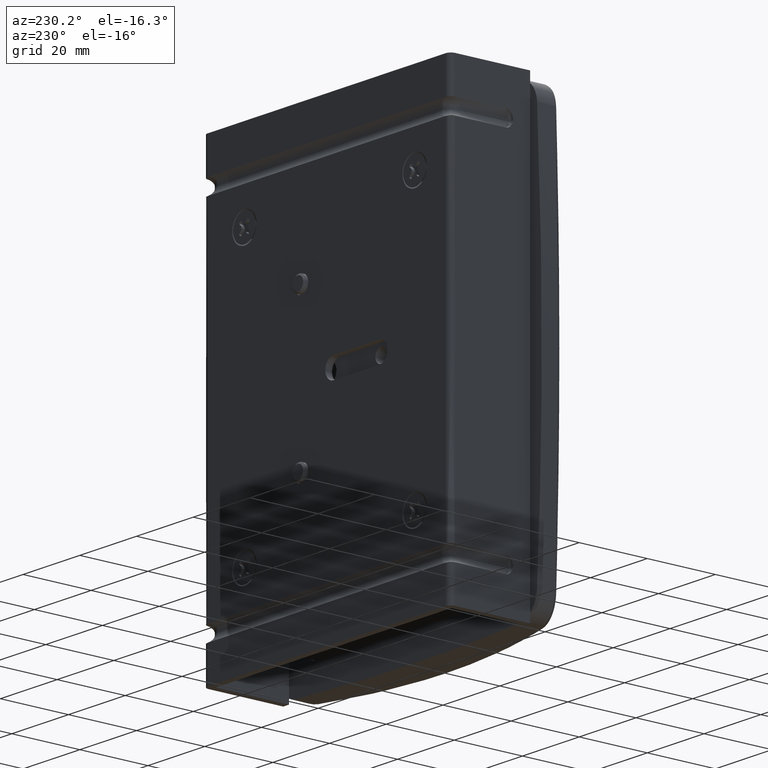
[diagram: clean part render]
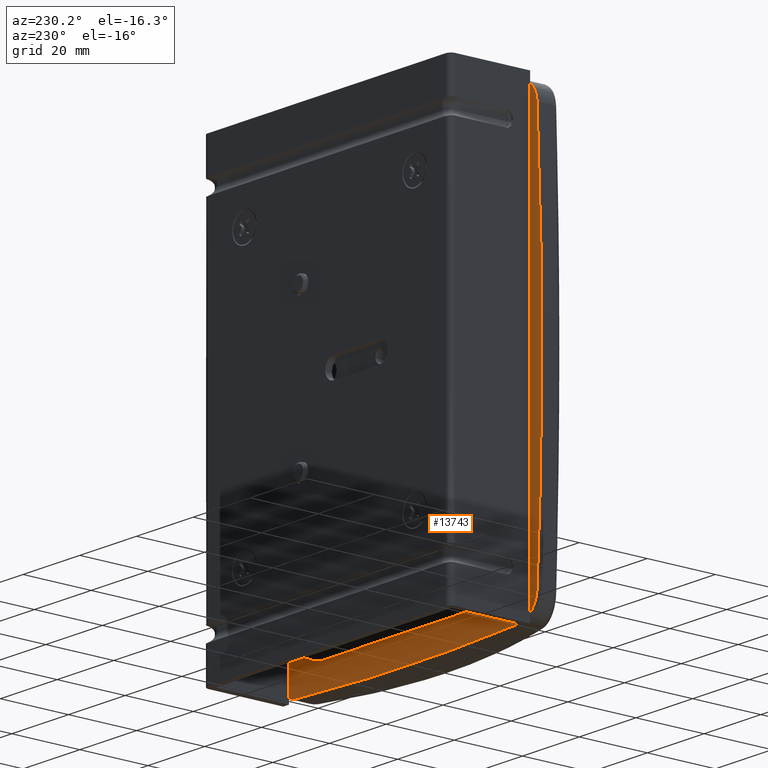
[diagram: same view with one face highlighted and labeled with its STEP entity id]
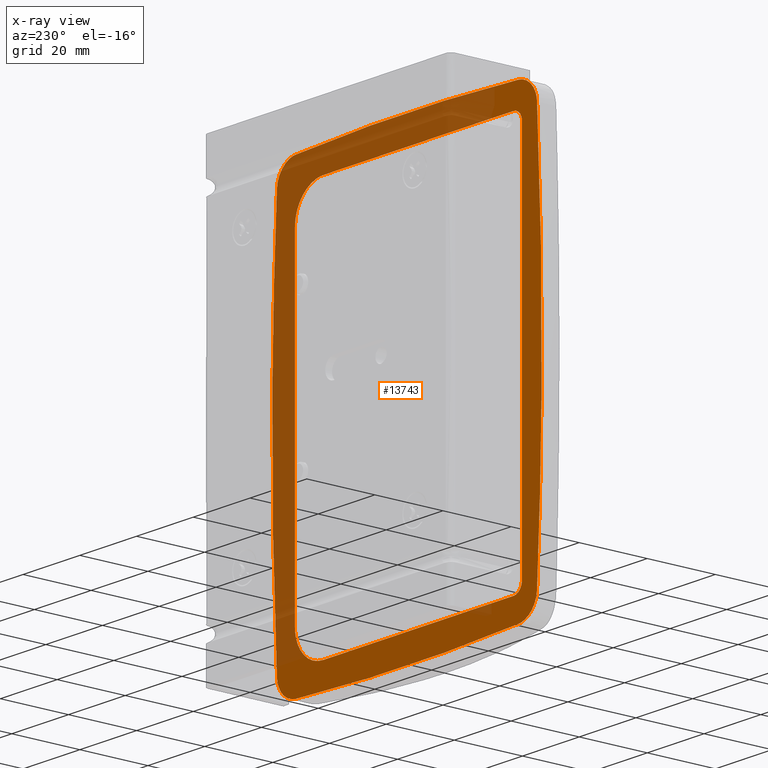
[diagram: x-ray of the same camera — body ghosted, the highlighted face saturated]
A machine part, auxiliary view. The second image highlights one B-rep face of the part: STEP entity #13743.
The next image is the same camera in x-ray: the body ghosted, the highlighted face saturated — about 49% of this face is hidden behind the body in this view.
In plain terms, the highlighted face is a freeform B-spline surface patch.
Its self-contained STEP definition (entity closure, byte-faithful):
#13163=CARTESIAN_POINT('',(10.000000000196160,1.0,56.999955629393398));
#13164=VERTEX_POINT('',#13163);
#13170=CARTESIAN_POINT('',(77.000000000217895,1.0,56.999955629183397));
#13171=VERTEX_POINT('',#13170);
#13172=CARTESIAN_POINT('',(10.000000000196160,1.0,56.999955629393398));
#13173=CARTESIAN_POINT('',(77.000000000217895,1.0,56.999955629183397));
#13174=QUASI_UNIFORM_CURVE('',1,(#13172,#13173),.UNSPECIFIED.,.F.,.U.);
#13175=EDGE_CURVE('',#13164,#13171,#13174,.T.);
#13216=CARTESIAN_POINT('',(87.000000000186589,1.0,46.999955629183397));
#13217=VERTEX_POINT('',#13216);
#13218=CARTESIAN_POINT('',(87.000000000186589,1.0,46.999955629183397));
#13219=CARTESIAN_POINT('',(87.000029697386367,0.999999999999999,47.531734030661198));
#13220=CARTESIAN_POINT('',(86.908433586726034,1.000000000000002,48.677094231111042));
#13221=CARTESIAN_POINT('',(86.407568768892489,0.999999999999991,50.626730974148359));
#13222=CARTESIAN_POINT('',(85.431552246983941,1.000000000000021,52.536589707972077));
#13223=CARTESIAN_POINT('',(84.134590237871009,0.999999999999971,54.077543958769681));
#13224=CARTESIAN_POINT('',(82.659565026916837,1.000000000000002,55.318829010504643));
#13225=CARTESIAN_POINT('',(81.005507295578283,1.000000000000025,56.242519078448872));
#13226=CARTESIAN_POINT('',(79.004346042545762,0.999999999999976,56.862841437360323));
#13227=CARTESIAN_POINT('',(77.695403486297380,1.0,57.000057792930811));
#13228=CARTESIAN_POINT('',(77.000000000217895,1.0,56.999955629183397));
#13229=B_SPLINE_CURVE_WITH_KNOTS('',3,(#13218,#13219,#13220,#13221,#13222,#13223,#13224,#13225,#13226,#13227,#13228),.UNSPECIFIED.,.F.,.U.,(4,1,1,1,1,1,1,1,4),(0.000000117440889,1.595347051500569,3.436131494187448,6.013276101084378,7.976711633750346,9.449372312671537,11.781047989181200,13.621863813449959,15.708061828731029),.UNSPECIFIED.);
#13230=EDGE_CURVE('',#13217,#13171,#13229,.T.);
#13253=CARTESIAN_POINT('',(87.000000000186589,1.0,-47.000044370024803));
#13254=VERTEX_POINT('',#13253);
#13255=CARTESIAN_POINT('',(87.000000000186589,1.0,46.999955629183397));
#13256=CARTESIAN_POINT('',(87.000000000186589,1.0,-47.000044370024803));
#13257=QUASI_UNIFORM_CURVE('',1,(#13255,#13256),.UNSPECIFIED.,.F.,.U.);
#13258=EDGE_CURVE('',#13217,#13254,#13257,.T.);
#13298=CARTESIAN_POINT('',(77.000000000186603,1.0,-57.000044370024803));
#13299=VERTEX_POINT('',#13298);
#13300=CARTESIAN_POINT('',(77.000000000186603,1.0,-57.000044370024803));
#13301=CARTESIAN_POINT('',(77.818131377445852,1.0,-57.000230024294723));
#13302=CARTESIAN_POINT('',(79.208829202799137,1.000000000000001,-56.828371035689322));
#13303=CARTESIAN_POINT('',(81.344267496958324,0.999999999999998,-56.093890030972993));
#13304=CARTESIAN_POINT('',(83.071335596751879,1.000000000000006,-55.044247279475350));
#13305=CARTESIAN_POINT('',(84.617562948203656,0.999999999999983,-53.571965603161310));
#13306=CARTESIAN_POINT('',(85.596951821150057,1.000000000000038,-52.199269927722099));
#13307=CARTESIAN_POINT('',(86.351943906949757,0.999999999999962,-50.652350281864862));
#13308=CARTESIAN_POINT('',(86.862899042931147,1.000000000000033,-49.004398186083627));
#13309=CARTESIAN_POINT('',(87.000103149710668,0.999999999999985,-47.695448109852073));
#13310=CARTESIAN_POINT('',(87.000000000186589,1.0,-47.000044370024803));
#13311=B_SPLINE_CURVE_WITH_KNOTS('',3,(#13300,#13301,#13302,#13303,#13304,#13305,#13306,#13307,#13308,#13309,#13310),.UNSPECIFIED.,.F.,.U.,(4,1,1,1,1,1,1,1,4),(0.000000117442754,2.454362959507773,4.172455298066378,6.749561563222681,8.467610603336002,10.553850759935200,11.781047989199980,13.621863813471631,15.708061828756041),.UNSPECIFIED.);
#13312=EDGE_CURVE('',#13299,#13254,#13311,.T.);
#13335=CARTESIAN_POINT('',(10.000000000186620,1.0,-57.000044370024803));
#13336=VERTEX_POINT('',#13335);
#13337=CARTESIAN_POINT('',(77.000000000186603,1.0,-57.000044370024803));
#13338=CARTESIAN_POINT('',(10.000000000186620,1.0,-57.000044370024803));
#13339=QUASI_UNIFORM_CURVE('',1,(#13337,#13338),.UNSPECIFIED.,.F.,.U.);
#13340=EDGE_CURVE('',#13299,#13336,#13339,.T.);
#13378=CARTESIAN_POINT('',(7.000000000186620,1.0,-54.000044370024703));
#13379=VERTEX_POINT('',#13378);
#13380=CARTESIAN_POINT('',(7.000000000186620,1.0,-54.000044370024703));
#13381=CARTESIAN_POINT('',(6.999464671010587,1.000000000000002,-54.417369413238823));
#13382=CARTESIAN_POINT('',(7.150997687393558,0.999999999999999,-55.128723873450170));
#13383=CARTESIAN_POINT('',(7.642223385146670,1.000000000000001,-55.904210915643390));
#13384=CARTESIAN_POINT('',(8.213834400387698,1.000000000000001,-56.448410318128850));
#13385=CARTESIAN_POINT('',(8.969301793961531,0.999999999999998,-56.876520634230573));
#13386=CARTESIAN_POINT('',(9.631821046864314,1.000000000000001,-57.000342929505997));
#13387=CARTESIAN_POINT('',(10.000000000186620,1.0,-57.000044370024803));
#13388=B_SPLINE_CURVE_WITH_KNOTS('',3,(#13380,#13381,#13382,#13383,#13384,#13385,#13386,#13387),.UNSPECIFIED.,.F.,.U.,(4,1,1,1,1,4),(0.000000209626553,1.251763977797114,2.135403990291206,2.724383930550045,3.608017489491105,4.712507233014129),.UNSPECIFIED.);
#13389=EDGE_CURVE('',#13379,#13336,#13388,.T.);
#13412=CARTESIAN_POINT('',(7.000000000186620,1.0,53.999955629393597));
#13413=VERTEX_POINT('',#13412);
#13414=CARTESIAN_POINT('',(7.000000000186620,1.0,-54.000044370024703));
#13415=CARTESIAN_POINT('',(7.000000000186620,1.0,53.999955629393597));
#13416=QUASI_UNIFORM_CURVE('',1,(#13414,#13415),.UNSPECIFIED.,.F.,.U.);
#13417=EDGE_CURVE('',#13379,#13413,#13416,.T.);
#13454=CARTESIAN_POINT('',(10.000000000196160,1.0,56.999955629393398));
#13455=CARTESIAN_POINT('',(9.631775264481256,1.0,57.000298336456311));
#13456=CARTESIAN_POINT('',(9.165700974298776,1.0,56.913031026282979));
#13457=CARTESIAN_POINT('',(8.469234322301274,0.999999999999999,56.604327733278332));
#13458=CARTESIAN_POINT('',(7.860580513018298,1.000000000000004,56.175854419862290));
#13459=CARTESIAN_POINT('',(7.326437017989341,0.999999999999996,55.455613953422272));
#13460=CARTESIAN_POINT('',(7.051728640090574,1.000000000000007,54.687151585091172));
#13461=CARTESIAN_POINT('',(6.999970291933591,0.999999999999995,54.220840854718617));
#13462=CARTESIAN_POINT('',(7.000000000186620,1.0,53.999955629393597));
#13463=B_SPLINE_CURVE_WITH_KNOTS('',3,(#13454,#13455,#13456,#13457,#13458,#13459,#13460,#13461,#13462),.UNSPECIFIED.,.F.,.U.,(4,1,1,1,1,1,4),(0.000000209620336,1.104489953147213,1.399025936105439,2.282648068007339,3.313481506537025,4.049836708143498,4.712507233021120),.UNSPECIFIED.);
#13464=EDGE_CURVE('',#13164,#13413,#13463,.T.);
#13607=CARTESIAN_POINT('',(-4.745249815871285,1.0,71.493499747575697));
#13608=CARTESIAN_POINT('',(99.745252363971005,1.0,71.493499747575697));
#13609=CARTESIAN_POINT('',(-4.745249815871285,1.0,-71.493503234596346));
#13610=CARTESIAN_POINT('',(99.745252363971005,1.0,-71.493503234596346));
#13611=B_SPLINE_SURFACE_WITH_KNOTS('',1,1,((#13607,#13609),(#13608,#13610)),.UNSPECIFIED.,.F.,.F.,.U.,(2,2),(2,2),(0.0,104.490502179842300),(0.0,142.987002982171990),.UNSPECIFIED.);
#13612=CARTESIAN_POINT('',(93.352146958775407,1.0,57.384585585241012));
#13613=VERTEX_POINT('',#13612);
#13614=CARTESIAN_POINT('',(86.729826981912510,1.0,63.973311056002707));
#13615=VERTEX_POINT('',#13614);
#13616=CARTESIAN_POINT('',(93.352146958775407,1.0,57.384585585241012));
#13617=CARTESIAN_POINT('',(93.321695652243108,1.000000000000005,57.916398995351052));
#13618=CARTESIAN_POINT('',(93.175045199707100,0.999999999999989,58.761596522955813));
#13619=CARTESIAN_POINT('',(92.702870542006920,1.000000000000012,60.038627591838157));
#13620=CARTESIAN_POINT('',(92.051554463979571,0.999999999999992,61.147402726377258));
#13621=CARTESIAN_POINT('',(90.991050285177607,0.999999999999997,62.317040922018343));
#13622=CARTESIAN_POINT('',(89.688276135530415,1.000000000000030,63.219731978614178));
#13623=CARTESIAN_POINT('',(88.187343332829400,0.999999999999981,63.795213219938120));
#13624=CARTESIAN_POINT('',(87.208582439374212,1.000000000000013,63.948301114596852));
#13625=CARTESIAN_POINT('',(86.729826981912510,1.0,63.973311056002707));
#13626=B_SPLINE_CURVE_WITH_KNOTS('',3,(#13616,#13617,#13618,#13619,#13620,#13621,#13622,#13623,#13624,#13625),.UNSPECIFIED.,.F.,.U.,(4,1,1,1,1,1,1,4),(0.000000141908851,1.598028056926561,2.556852657719469,4.074995086601747,5.433260687285694,7.271036544744964,8.789180421854146,10.227404701036040),.UNSPECIFIED.);
#13627=EDGE_CURVE('',#13613,#13615,#13626,.T.);
#13628=ORIENTED_EDGE('',*,*,#13627,.F.);
#13629=CARTESIAN_POINT('',(93.352146958777709,1.0,-57.384585585501512));
#13630=VERTEX_POINT('',#13629);
#13631=CARTESIAN_POINT('',(93.352146958777709,1.0,-57.384585585501512));
#13632=CARTESIAN_POINT('',(96.650572942868834,1.0,-1.300847E-010));
#13633=CARTESIAN_POINT('',(93.352146958775407,1.0,57.384585585241012));
#13641=(BOUNDED_CURVE()B_SPLINE_CURVE(2,(#13631,#13632,#13633),.UNSPECIFIED.,.F.,.U.)CURVE()GEOMETRIC_REPRESENTATION_ITEM()QUASI_UNIFORM_CURVE()RATIONAL_B_SPLINE_CURVE((1.0,0.998352146958775,1.0))REPRESENTATION_ITEM(''));
#13642=EDGE_CURVE('',#13630,#13613,#13641,.T.);
#13643=ORIENTED_EDGE('',*,*,#13642,.F.);
#13644=CARTESIAN_POINT('',(86.729826981894206,1.0,-63.973311056265111));
#13645=VERTEX_POINT('',#13644);
#13646=CARTESIAN_POINT('',(86.729826981894206,1.0,-63.973311056265111));
#13647=CARTESIAN_POINT('',(87.394792625357113,1.000000000000001,-63.938735878735429));
#13648=CARTESIAN_POINT('',(88.556123846119746,0.999999999999999,-63.708928153304697));
#13649=CARTESIAN_POINT('',(89.933697786239279,1.000000000000000,-63.049956102445833));
#13650=CARTESIAN_POINT('',(90.992055829815527,1.000000000000002,-62.280246037920712));
#13651=CARTESIAN_POINT('',(91.924322476427307,1.000000000000004,-61.320541919500350));
#13652=CARTESIAN_POINT('',(92.621640203594438,0.999999999999986,-60.207362191762201));
#13653=CARTESIAN_POINT('',(93.152354871386734,1.000000000000007,-58.866973614343081));
#13654=CARTESIAN_POINT('',(93.318678803233681,0.999999999999994,-57.969582761998637));
#13655=CARTESIAN_POINT('',(93.352146958777709,1.0,-57.384585585501512));
#13656=B_SPLINE_CURVE_WITH_KNOTS('',3,(#13646,#13647,#13648,#13649,#13650,#13651,#13652,#13653,#13654,#13655),.UNSPECIFIED.,.F.,.U.,(4,1,1,1,1,1,1,4),(0.000000141938603,1.997539314411565,3.515691478364490,4.554431659601784,5.912696501741420,7.510747685092381,8.469587468921295,10.227404701057040),.UNSPECIFIED.);
#13657=EDGE_CURVE('',#13645,#13630,#13656,.T.);
#13658=ORIENTED_EDGE('',*,*,#13657,.F.);
#13659=CARTESIAN_POINT('',(8.270173018109309,1.0,-63.973311056229797));
#13660=VERTEX_POINT('',#13659);
#13661=CARTESIAN_POINT('',(8.270173018109309,1.0,-63.973311056229797));
#13662=CARTESIAN_POINT('',(47.500000000000242,1.0,-66.028096323373248));
#13663=CARTESIAN_POINT('',(86.729826981894206,1.0,-63.973311056265111));
#13671=(BOUNDED_CURVE()B_SPLINE_CURVE(2,(#13661,#13662,#13663),.UNSPECIFIED.,.F.,.U.)CURVE()GEOMETRIC_REPRESENTATION_ITEM()QUASI_UNIFORM_CURVE()RATIONAL_B_SPLINE_CURVE((1.0,0.998631081408697,1.0))REPRESENTATION_ITEM(''));
#13672=EDGE_CURVE('',#13660,#13645,#13671,.T.);
#13673=ORIENTED_EDGE('',*,*,#13672,.F.);
#13674=CARTESIAN_POINT('',(1.647853041230520,1.0,-57.384585585463697));
#13675=VERTEX_POINT('',#13674);
#13676=CARTESIAN_POINT('',(1.647853041230520,1.0,-57.384585585463697));
#13677=CARTESIAN_POINT('',(1.691740176732110,1.000000000000001,-58.155781323400873));
#13678=CARTESIAN_POINT('',(1.967024656154487,0.999999999999999,-59.366789521824479));
#13679=CARTESIAN_POINT('',(2.791258842150250,0.999999999999999,-60.928831413547513));
#13680=CARTESIAN_POINT('',(3.788818563137754,0.999999999999998,-62.121482142746920));
#13681=CARTESIAN_POINT('',(4.972114044897192,1.000000000000015,-63.002725418716629));
#13682=CARTESIAN_POINT('',(6.470651978746803,0.999999999999989,-63.709001264786359));
#13683=CARTESIAN_POINT('',(7.551978552418190,1.000000000000011,-63.936037119903872));
#13684=CARTESIAN_POINT('',(8.270173018109309,1.0,-63.973311056229797));
#13685=B_SPLINE_CURVE_WITH_KNOTS('',3,(#13676,#13677,#13678,#13679,#13680,#13681,#13682,#13683,#13684),.UNSPECIFIED.,.F.,.U.,(4,1,1,1,1,1,4),(0.000000141904268,2.317142633364259,3.675489229730216,5.273468158891441,6.951434913914950,8.070070602535385,10.227404701054571),.UNSPECIFIED.);
#13686=EDGE_CURVE('',#13675,#13660,#13685,.T.);
#13687=ORIENTED_EDGE('',*,*,#13686,.F.);
#13688=CARTESIAN_POINT('',(1.647853041229955,1.0,57.384585585430813));
#13689=VERTEX_POINT('',#13688);
#13690=CARTESIAN_POINT('',(1.647853041229955,1.0,57.384585585430813));
#13691=CARTESIAN_POINT('',(-1.650572942873296,1.0,-1.651029E-011));
#13692=CARTESIAN_POINT('',(1.647853041230520,1.0,-57.384585585463697));
#13700=(BOUNDED_CURVE()B_SPLINE_CURVE(2,(#13690,#13691,#13692),.UNSPECIFIED.,.F.,.U.)CURVE()GEOMETRIC_REPRESENTATION_ITEM()QUASI_UNIFORM_CURVE()RATIONAL_B_SPLINE_CURVE((1.0,0.998352146958771,1.0))REPRESENTATION_ITEM(''));
#13701=EDGE_CURVE('',#13689,#13675,#13700,.T.);
#13702=ORIENTED_EDGE('',*,*,#13701,.F.);
#13703=CARTESIAN_POINT('',(8.270173018127320,1.0,63.973311056194213));
#13704=VERTEX_POINT('',#13703);
#13705=CARTESIAN_POINT('',(8.270173018127320,1.0,63.973311056194213));
#13706=CARTESIAN_POINT('',(7.738211282759355,0.999999999999997,63.945563929378963));
#13707=CARTESIAN_POINT('',(6.865838708017257,1.000000000000005,63.798777541072347));
#13708=CARTESIAN_POINT('',(5.663741236325536,0.999999999999995,63.353402039540804));
#13709=CARTESIAN_POINT('',(4.756251967066242,1.000000000000003,62.840256016033507));
#13710=CARTESIAN_POINT('',(3.725530994528290,1.000000000000005,62.035530936821417));
#13711=CARTESIAN_POINT('',(2.793446503982255,0.999999999999987,60.959288248193310));
#13712=CARTESIAN_POINT('',(1.949663637544653,1.000000000000013,59.314505588767581));
#13713=CARTESIAN_POINT('',(1.688728623062336,1.000000000000004,58.102578329493987));
#13714=CARTESIAN_POINT('',(1.647853041229955,1.0,57.384585585430813));
#13715=B_SPLINE_CURVE_WITH_KNOTS('',3,(#13705,#13706,#13707,#13708,#13709,#13710,#13711,#13712,#13713,#13714),.UNSPECIFIED.,.F.,.U.,(4,1,1,1,1,1,1,4),(0.000000141948922,1.598028056965998,2.636754436281156,3.835281738987465,4.714216502233998,6.551926725433593,8.070070602557030,10.227404701070220),.UNSPECIFIED.);
#13716=EDGE_CURVE('',#13704,#13689,#13715,.T.);
#13717=ORIENTED_EDGE('',*,*,#13716,.F.);
#13718=CARTESIAN_POINT('',(86.729826981912510,1.0,63.973311056002707));
#13719=CARTESIAN_POINT('',(47.500000000024464,1.0,66.028096323224375));
#13720=CARTESIAN_POINT('',(8.270173018127320,1.0,63.973311056194213));
#13728=(BOUNDED_CURVE()B_SPLINE_CURVE(2,(#13718,#13719,#13720),.UNSPECIFIED.,.F.,.U.)CURVE()GEOMETRIC_REPRESENTATION_ITEM()QUASI_UNIFORM_CURVE()RATIONAL_B_SPLINE_CURVE((1.0,0.998631081408697,1.0))REPRESENTATION_ITEM(''));
#13729=EDGE_CURVE('',#13615,#13704,#13728,.T.);
#13730=ORIENTED_EDGE('',*,*,#13729,.F.);
#13731=EDGE_LOOP('',(#13628,#13643,#13658,#13673,#13687,#13702,#13717,#13730));
#13732=FACE_OUTER_BOUND('',#13731,.T.);
#13733=ORIENTED_EDGE('',*,*,#13175,.F.);
#13734=ORIENTED_EDGE('',*,*,#13464,.T.);
#13735=ORIENTED_EDGE('',*,*,#13417,.F.);
#13736=ORIENTED_EDGE('',*,*,#13389,.T.);
#13737=ORIENTED_EDGE('',*,*,#13340,.F.);
#13738=ORIENTED_EDGE('',*,*,#13312,.T.);
#13739=ORIENTED_EDGE('',*,*,#13258,.F.);
#13740=ORIENTED_EDGE('',*,*,#13230,.T.);
#13741=EDGE_LOOP('',(#13733,#13734,#13735,#13736,#13737,#13738,#13739,#13740));
#13742=FACE_BOUND('',#13741,.T.);
#13743=ADVANCED_FACE('',(#13732,#13742),#13611,.T.);